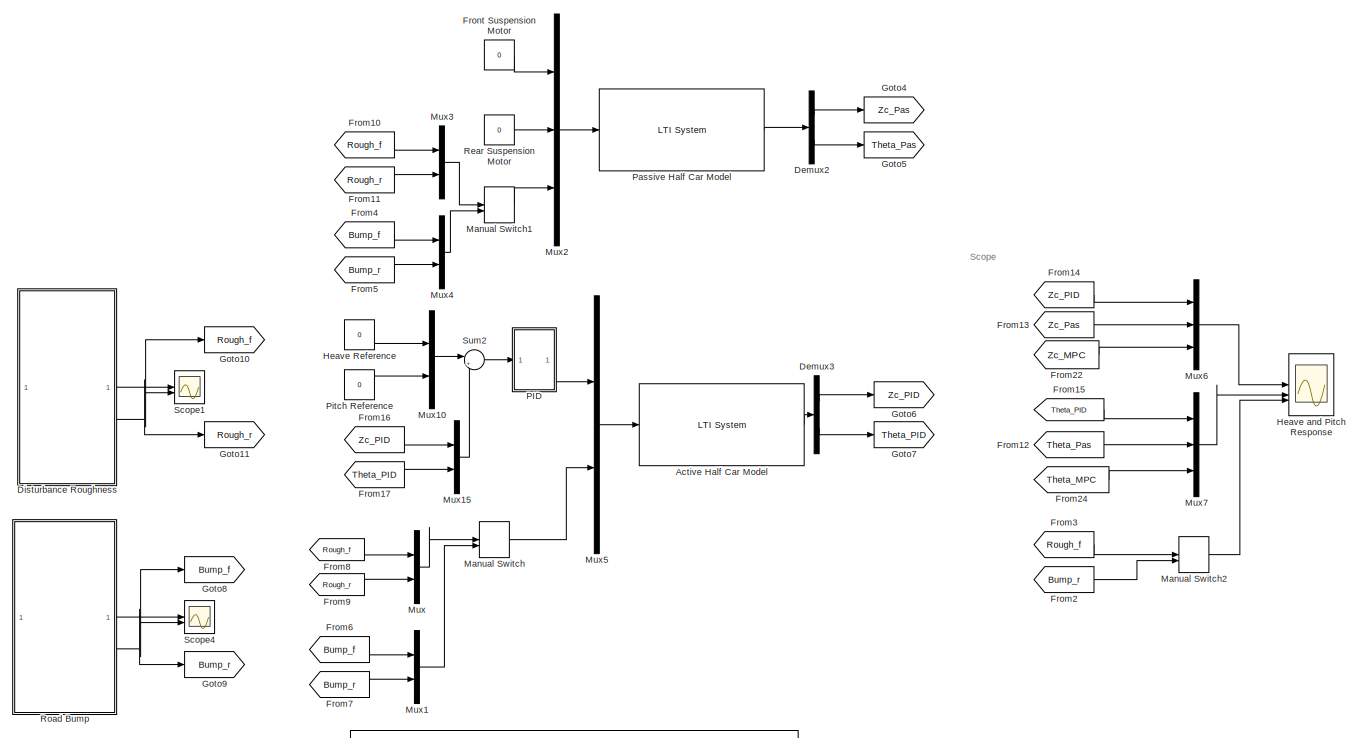
[diagram: root canvas - part 1/2, full width, middle band]
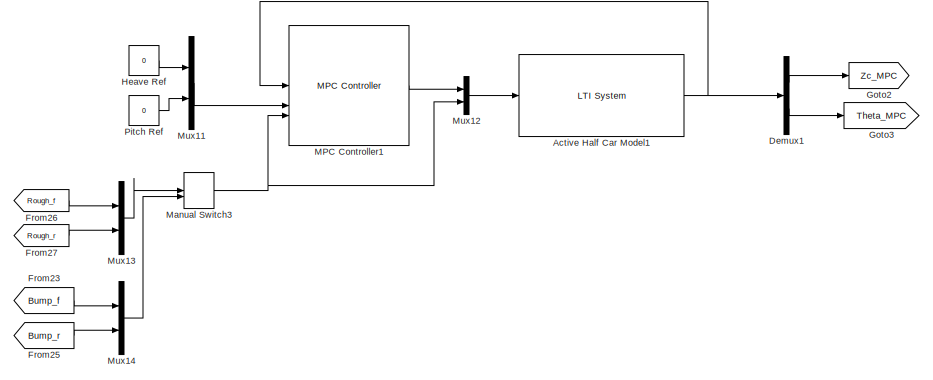
[diagram: root canvas - part 2/2, bottom center region]
MODEL slx_959c985dba7c
KIND model
CONFIG AbsTol = auto
CONFIG EnableMultiTasking = off
CONFIG FixedStep = auto
CONFIG MaxStep = 0.01
CONFIG MinStep = auto
CONFIG RelTol = 1e-3
CONFIG SampleTimeConstraint = Unconstrained
CONFIG SolverName = VariableStepAuto
CONFIG StartTime = 0.0
CONFIG StopTime = 12
BLOCK [Reference] Active Half Car Model  REF=cstblocks/LTI System
  SourceBlock = cstblocks/LTI System
  SourceType = LTI Block
BLOCK [Reference] Active Half Car Model1  REF=cstblocks/LTI System
  SourceBlock = cstblocks/LTI System
  SourceType = LTI Block
BLOCK [Demux] Demux1
  Outputs = 2
BLOCK [Demux] Demux2
  Outputs = 2
BLOCK [Demux] Demux3
  Outputs = 2
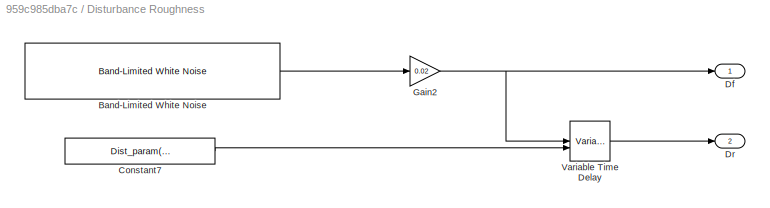
BLOCK [SubSystem] Disturbance Roughness
BLOCK [Reference] Disturbance Roughness/Band-Limited White Noise  REF=simulink/Sources/Band-Limited
White Noise
  SourceBlock = simulink/Sources/Band-Limited\nWhite Noise
  SourceType = Band-Limited White Noise.
BLOCK [Constant] Disturbance Roughness/Constant7
  Value = Dist_param(2)/Dist_param(3)
BLOCK [Outport] Disturbance Roughness/Df
BLOCK [Outport] Disturbance Roughness/Dr
  Port = 2
BLOCK [Gain] Disturbance Roughness/Gain2
  Gain = 0.02
BLOCK [VariableTransportDelay] Disturbance Roughness/Variable Time Delay
  MaximumDelay = 10
  MaximumPoints = 8182*100
BLOCK [From] From10
  GotoTag = Rough_f
BLOCK [From] From11
  GotoTag = Rough_r
BLOCK [From] From12
  GotoTag = Theta_Pas
BLOCK [From] From13
  GotoTag = Zc_Pas
BLOCK [From] From14
  GotoTag = Zc_PID
BLOCK [From] From15
  GotoTag = Theta_PID
BLOCK [From] From16
  GotoTag = Zc_PID
BLOCK [From] From17
  GotoTag = Theta_PID
BLOCK [From] From2
  GotoTag = Bump_r
BLOCK [From] From22
  GotoTag = Zc_MPC
BLOCK [From] From23
  GotoTag = Bump_f
BLOCK [From] From24
  GotoTag = Theta_MPC
BLOCK [From] From25
  GotoTag = Bump_r
BLOCK [From] From26
  GotoTag = Rough_f
BLOCK [From] From27
  GotoTag = Rough_r
BLOCK [From] From3
  GotoTag = Rough_f
BLOCK [From] From4
  GotoTag = Bump_f
BLOCK [From] From5
  GotoTag = Bump_r
BLOCK [From] From6
  GotoTag = Bump_f
BLOCK [From] From7
  GotoTag = Bump_r
BLOCK [From] From8
  GotoTag = Rough_f
BLOCK [From] From9
  GotoTag = Rough_r
BLOCK [Constant] Front Suspension Motor
  Value = 0
BLOCK [Goto] Goto10
  GotoTag = Rough_f
BLOCK [Goto] Goto11
  GotoTag = Rough_r
BLOCK [Goto] Goto2
  GotoTag = Zc_MPC
BLOCK [Goto] Goto3
  GotoTag = Theta_MPC
BLOCK [Goto] Goto4
  GotoTag = Zc_Pas
BLOCK [Goto] Goto5
  GotoTag = Theta_Pas
BLOCK [Goto] Goto6
  GotoTag = Zc_PID
BLOCK [Goto] Goto7
  GotoTag = Theta_PID
BLOCK [Goto] Goto8
  GotoTag = Bump_f
BLOCK [Goto] Goto9
  GotoTag = Bump_r
BLOCK [Constant] Heave Ref
  Value = 0
BLOCK [Constant] Heave Reference
  Value = 0
BLOCK [Scope] Heave and Pitch Response
  Floating = off
  NumInputPorts = 3
  ScopeSpecificationString = Simulink.scopes.TimeScopeBlockCfg('CurrentConfiguration', extmgr.ConfigurationSet(extmgr.Configuration('Core','General UI',true,'FigureColor',[0.831372549019608 0.815686274509804 0.784313725490196]),extmgr.Configuration('Core','Source UI',true),extmgr.Configuration('Sources','WiredSimulink',true,'DataLoggingVariableName','ScopeData2'),extmgr.Configuration('Visuals','Time Domain',true,'SerializedDi...<+4016ch>
BLOCK [Reference] MPC Controller1  REF=mpclib/MPC Controller  (lib defined in mdl_ae329e0e0455)
  SCDEnableBlockLinearizationSpecification = on
  SourceBlock = mpclib/MPC Controller
  SourceType = MPC
BLOCK [ManualSwitch] Manual Switch
  CurrentSetting = 0
BLOCK [ManualSwitch] Manual Switch1
  CurrentSetting = 0
BLOCK [ManualSwitch] Manual Switch2
  CurrentSetting = 0
BLOCK [ManualSwitch] Manual Switch3
  CurrentSetting = 0
BLOCK [Mux] Mux
  DisplayOption = bar
  Inputs = 2
BLOCK [Mux] Mux1
  DisplayOption = bar
  Inputs = 2
BLOCK [Mux] Mux10
  DisplayOption = bar
  Inputs = 2
BLOCK [Mux] Mux11
  DisplayOption = bar
  Inputs = 2
BLOCK [Mux] Mux12
  DisplayOption = bar
  Inputs = 2
BLOCK [Mux] Mux13
  DisplayOption = bar
  Inputs = 2
BLOCK [Mux] Mux14
  DisplayOption = bar
  Inputs = 2
BLOCK [Mux] Mux15
  DisplayOption = bar
  Inputs = 2
BLOCK [Mux] Mux2
  DisplayOption = bar
  Inputs = 3
BLOCK [Mux] Mux3
  DisplayOption = bar
  Inputs = 2
BLOCK [Mux] Mux4
  DisplayOption = bar
  Inputs = 2
BLOCK [Mux] Mux5
  DisplayOption = bar
  Inputs = 2
BLOCK [Mux] Mux6
  DisplayOption = bar
  Inputs = 3
BLOCK [Mux] Mux7
  DisplayOption = bar
  Inputs = 3
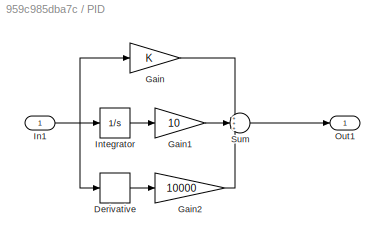
BLOCK [SubSystem] PID
BLOCK [Derivative] PID/Derivative
BLOCK [Gain] PID/Gain
BLOCK [Gain] PID/Gain1
  Gain = 10
BLOCK [Gain] PID/Gain2
  Gain = 10000
BLOCK [Inport] PID/In1
BLOCK [Integrator] PID/Integrator
BLOCK [Outport] PID/Out1
BLOCK [Sum] PID/Sum
  Inputs = +++
BLOCK [Reference] Passive Half Car Model  REF=cstblocks/LTI System
  SourceBlock = cstblocks/LTI System
  SourceType = LTI Block
BLOCK [Constant] Pitch Ref
  Value = 0
BLOCK [Constant] Pitch Reference
  Value = 0
BLOCK [Constant] Rear Suspension Motor
  Value = 0
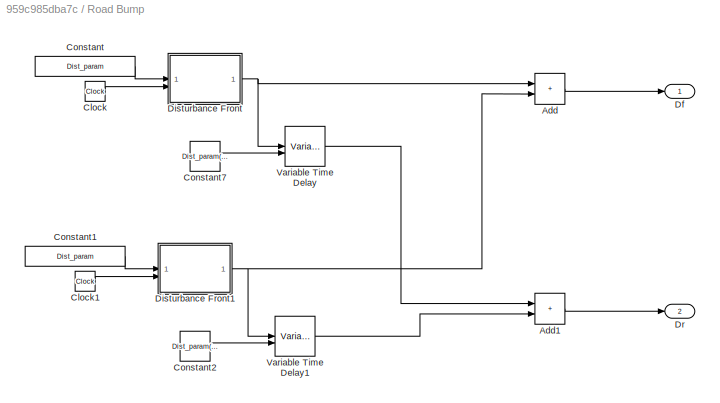
BLOCK [SubSystem] Road Bump
BLOCK [Sum] Road Bump/Add
  IconShape = rectangular
BLOCK [Sum] Road Bump/Add1
  IconShape = rectangular
BLOCK [Clock] Road Bump/Clock
  Decimation = 20
BLOCK [Clock] Road Bump/Clock1
  Decimation = 20
BLOCK [Constant] Road Bump/Constant
  Value = Dist_param
BLOCK [Constant] Road Bump/Constant1
  Value = Dist_param
BLOCK [Constant] Road Bump/Constant2
  Value = Dist_param(2)/Dist_param(3)
BLOCK [Constant] Road Bump/Constant7
  Value = Dist_param(2)/Dist_param(3)
BLOCK [Outport] Road Bump/Df
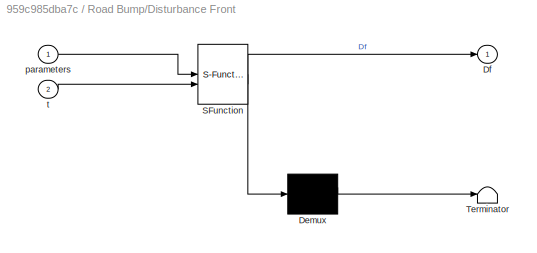
BLOCK [SubSystem] Road Bump/Disturbance Front
  ErrorFcn = Stateflow.Translate.translate
  PermitHierarchicalResolution = ExplicitOnly
  SFBlockType = MATLAB Function
  TreatAsAtomicUnit = on
BLOCK [Demux] Road Bump/Disturbance Front/ Demux 
  Outputs = 1
BLOCK [S-Function] Road Bump/Disturbance Front/ SFunction 
  EnableBusSupport = on
  FunctionName = sf_sfun
  PortCounts = [2 2]
  SFcnIsStateOwnerBlock = off
  SFunctionDeploymentMode = off
  Tag = Stateflow S-Function 5
BLOCK [Terminator] Road Bump/Disturbance Front/ Terminator 
BLOCK [Outport] Road Bump/Disturbance Front/Df
BLOCK [Inport] Road Bump/Disturbance Front/parameters
BLOCK [Inport] Road Bump/Disturbance Front/t
  Port = 2
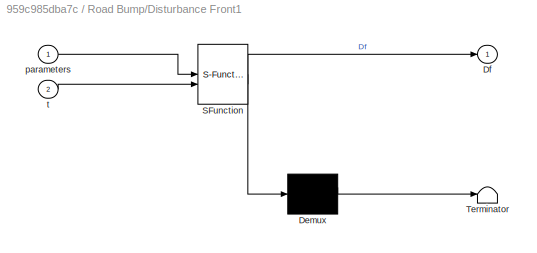
BLOCK [SubSystem] Road Bump/Disturbance Front1
  ErrorFcn = Stateflow.Translate.translate
  PermitHierarchicalResolution = ExplicitOnly
  SFBlockType = MATLAB Function
  TreatAsAtomicUnit = on
BLOCK [Demux] Road Bump/Disturbance Front1/ Demux 
  Outputs = 1
BLOCK [S-Function] Road Bump/Disturbance Front1/ SFunction 
  EnableBusSupport = on
  FunctionName = sf_sfun
  PortCounts = [2 2]
  SFcnIsStateOwnerBlock = off
  SFunctionDeploymentMode = off
  Tag = Stateflow S-Function 7
BLOCK [Terminator] Road Bump/Disturbance Front1/ Terminator 
BLOCK [Outport] Road Bump/Disturbance Front1/Df
BLOCK [Inport] Road Bump/Disturbance Front1/parameters
BLOCK [Inport] Road Bump/Disturbance Front1/t
  Port = 2
BLOCK [Outport] Road Bump/Dr
  Port = 2
BLOCK [VariableTransportDelay] Road Bump/Variable Time Delay
  MaximumDelay = 10
  MaximumPoints = 8192*100
BLOCK [VariableTransportDelay] Road Bump/Variable Time Delay1
  MaximumDelay = 10
  MaximumPoints = 8192*100
BLOCK [Scope] Scope1
  Floating = off
  NumInputPorts = 2
  ScopeSpecificationString = Simulink.scopes.TimeScopeBlockCfg('CurrentConfiguration', extmgr.ConfigurationSet(extmgr.Configuration('Core','General UI',true,'FigureColor',[0.831372549019608 0.815686274509804 0.784313725490196]),extmgr.Configuration('Core','Source UI',true),extmgr.Configuration('Sources','WiredSimulink',true,'DataLoggingVariableName','ScopeData2'),extmgr.Configuration('Visuals','Time Domain',true,'SerializedDi...<+1756ch>
BLOCK [Scope] Scope4
  Floating = off
  NumInputPorts = 2
  ScopeSpecificationString = Simulink.scopes.TimeScopeBlockCfg('CurrentConfiguration', extmgr.ConfigurationSet(extmgr.Configuration('Core','General UI',true,'FigureColor',[0.831372549019608 0.815686274509804 0.784313725490196]),extmgr.Configuration('Core','Source UI',true),extmgr.Configuration('Sources','WiredSimulink',true,'DataLoggingVariableName','ScopeData3'),extmgr.Configuration('Visuals','Time Domain',true,'SerializedDi...<+1800ch>
BLOCK [Sum] Sum2
  Inputs = |+-
ANNOTATION (root): Scope
NET Active Half Car Model1:1 -> Demux1:1, MPC Controller1:1
LINE Active Half Car Model:1 -> Demux3:1
LINE Demux1:1 -> Goto2:1
LINE Demux1:2 -> Goto3:1
LINE Demux2:1 -> Goto4:1
LINE Demux2:2 -> Goto5:1
LINE Demux3:1 -> Goto6:1
LINE Demux3:2 -> Goto7:1
LINE Disturbance Roughness/Band-Limited White Noise:1 -> Disturbance Roughness/Gain2:1
LINE Disturbance Roughness/Constant7:1 -> Disturbance Roughness/Variable Time Delay:2
NET Disturbance Roughness/Gain2:1 -> Disturbance Roughness/Df:1, Disturbance Roughness/Variable Time Delay:1
LINE Disturbance Roughness/Variable Time Delay:1 -> Disturbance Roughness/Dr:1
NET Disturbance Roughness:1 -> Goto10:1, Scope1:1
NET Disturbance Roughness:2 -> Goto11:1, Scope1:2
LINE From10:1 -> Mux3:1
LINE From11:1 -> Mux3:2
LINE From12:1 -> Mux7:2
LINE From13:1 -> Mux6:2
LINE From14:1 -> Mux6:1
LINE From15:1 -> Mux7:1
LINE From16:1 -> Mux15:1
LINE From17:1 -> Mux15:2
LINE From22:1 -> Mux6:3
LINE From23:1 -> Mux14:1
LINE From24:1 -> Mux7:3
LINE From25:1 -> Mux14:2
LINE From26:1 -> Mux13:1
LINE From27:1 -> Mux13:2
LINE From2:1 -> Manual Switch2:2
LINE From3:1 -> Manual Switch2:1
LINE From4:1 -> Mux4:1
LINE From5:1 -> Mux4:2
LINE From6:1 -> Mux1:1
LINE From7:1 -> Mux1:2
LINE From8:1 -> Mux:1
LINE From9:1 -> Mux:2
LINE Front Suspension Motor:1 -> Mux2:1
LINE Heave Ref:1 -> Mux11:1
LINE Heave Reference:1 -> Mux10:1
LINE MPC Controller1:1 -> Mux12:1
LINE Manual Switch1:1 -> Mux2:3
LINE Manual Switch2:1 -> Heave and Pitch Response:3
NET Manual Switch3:1 -> MPC Controller1:3, Mux12:2
LINE Manual Switch:1 -> Mux5:2
LINE Mux10:1 -> Sum2:1
LINE Mux11:1 -> MPC Controller1:2
LINE Mux12:1 -> Active Half Car Model1:1
LINE Mux13:1 -> Manual Switch3:1
LINE Mux14:1 -> Manual Switch3:2
LINE Mux15:1 -> Sum2:2
LINE Mux1:1 -> Manual Switch:2
LINE Mux2:1 -> Passive Half Car Model:1
LINE Mux3:1 -> Manual Switch1:1
LINE Mux4:1 -> Manual Switch1:2
LINE Mux5:1 -> Active Half Car Model:1
LINE Mux6:1 -> Heave and Pitch Response:1
LINE Mux7:1 -> Heave and Pitch Response:2
LINE Mux:1 -> Manual Switch:1
LINE PID/Derivative:1 -> PID/Gain2:1
LINE PID/Gain1:1 -> PID/Sum:2
LINE PID/Gain2:1 -> PID/Sum:3
LINE PID/Gain:1 -> PID/Sum:1
NET PID/In1:1 -> PID/Derivative:1, PID/Gain:1, PID/Integrator:1
LINE PID/Integrator:1 -> PID/Gain1:1
LINE PID/Sum:1 -> PID/Out1:1
LINE PID:1 -> Mux5:1
LINE Passive Half Car Model:1 -> Demux2:1
LINE Pitch Ref:1 -> Mux11:2
LINE Pitch Reference:1 -> Mux10:2
LINE Rear Suspension Motor:1 -> Mux2:2
LINE Road Bump/Add1:1 -> Road Bump/Dr:1
LINE Road Bump/Add:1 -> Road Bump/Df:1
LINE Road Bump/Clock1:1 -> Road Bump/Disturbance Front1:2
LINE Road Bump/Clock:1 -> Road Bump/Disturbance Front:2
LINE Road Bump/Constant1:1 -> Road Bump/Disturbance Front1:1
LINE Road Bump/Constant2:1 -> Road Bump/Variable Time Delay1:2
LINE Road Bump/Constant7:1 -> Road Bump/Variable Time Delay:2
LINE Road Bump/Constant:1 -> Road Bump/Disturbance Front:1
NET Road Bump/Disturbance Front1:1 -> Road Bump/Add:2, Road Bump/Variable Time Delay1:1
NET Road Bump/Disturbance Front:1 -> Road Bump/Add:1, Road Bump/Variable Time Delay:1
LINE Road Bump/Variable Time Delay1:1 -> Road Bump/Add1:2
LINE Road Bump/Variable Time Delay:1 -> Road Bump/Add1:1
NET Road Bump:1 -> Goto8:1, Scope4:1
NET Road Bump:2 -> Goto9:1, Scope4:2
LINE Sum2:1 -> PID:1
note: NET lines group one-source signal fan-out (src -> all destinations, sorted); 1:1 wires keep LINE
CHART Road Bump/Disturbance Front1 states=1 transitions=1
  STATE_LABEL 'eML_blk_kernel()'
  STATE_LABEL 'SCRIPT:\nfunction Df = fcn(parameters,t)\n\nmu = parameters(1);\n\nif (7.5<t) && (t<7.75)\n    Df = -mu*(1-cos(8*pi*t));\nelse\n    Df = 0;\nend\nend'
CHART Road Bump/Disturbance Front states=1 transitions=1
  STATE_LABEL 'eML_blk_kernel()'
  STATE_LABEL 'SCRIPT:\nfunction Df = fcn(parameters,t)\n\nmu = parameters(1);\n\nif (0.5<t) && (t<0.75)\n    Df = mu*(1-cos(8*pi*t));\nelse\n    Df = 0;\nend\nend'
CHART  states=0 transitions=0
CHART  states=0 transitions=0
